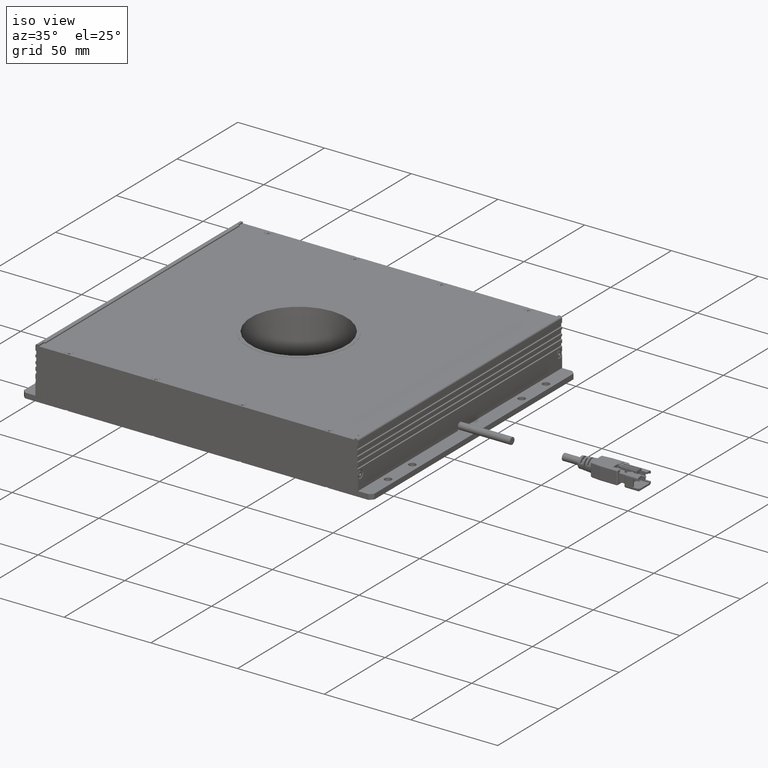
[diagram: clean part render]
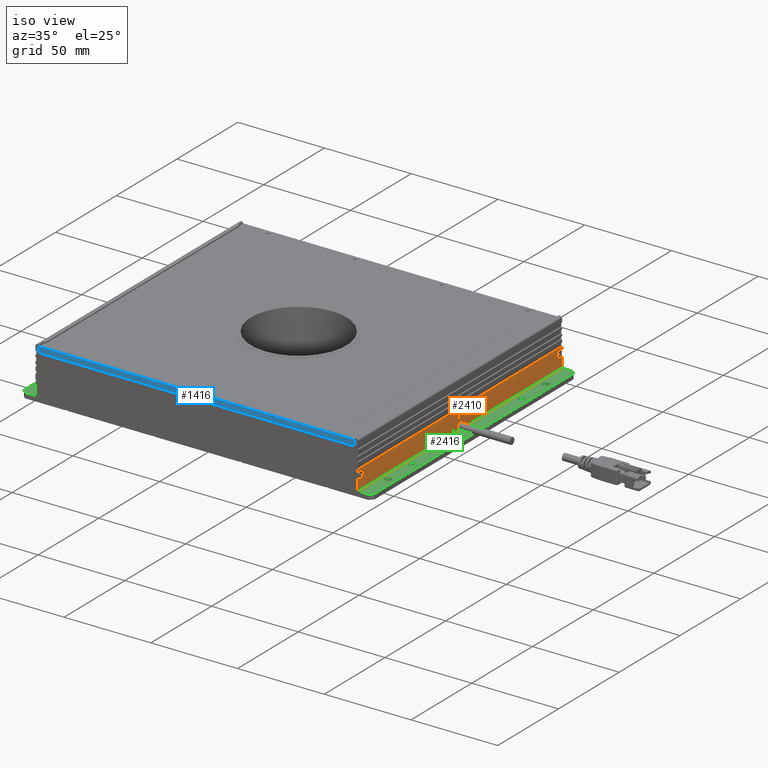
[diagram: same view with three faces highlighted in distinct colors, each labeled with its STEP entity id]
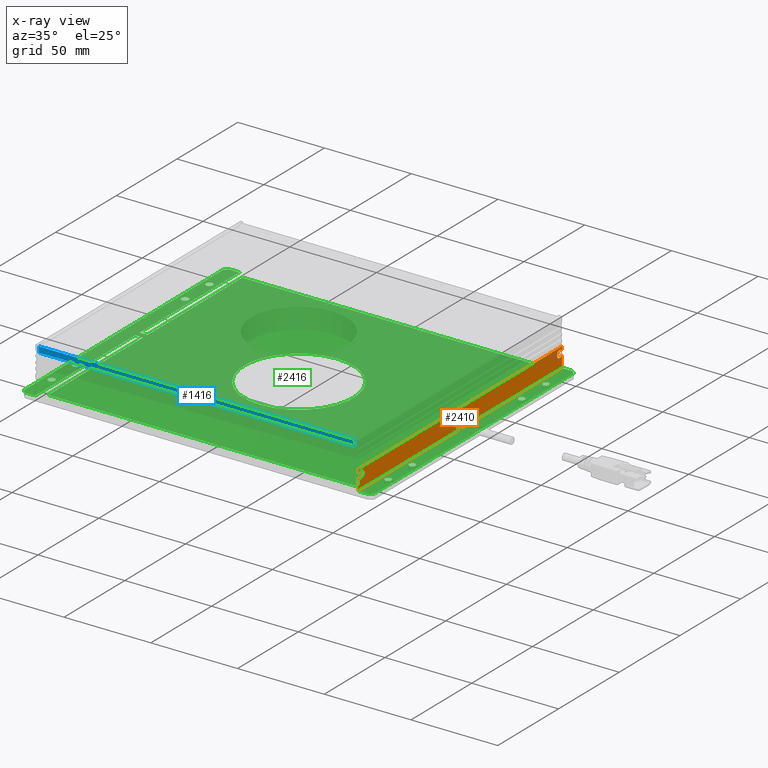
[diagram: x-ray of the same camera — body ghosted, the three highlighted faces saturated]
A machine part, iso view with three faces highlighted in distinct colors.
The next image is the same camera in x-ray (body ghosted, the three faces saturated) — at least one of them is partly hidden behind the body in this view.
Their STEP definitions:

[orange] entity #2410 — the highlighted planar face has unit normal (1, 0, 0).
#2410=ADVANCED_FACE('NONE',(#5809),#5810,.T.);
#5809=FACE_OUTER_BOUND('',#10111,.T.);
#5810=PLANE('',#10112);
#10111=EDGE_LOOP('',(#18374,#18375,#18376,#18377,#18378,#18379,#18380,#18381,#18382,#18383,#18384,#18385,#18386,#18387));
#10112=AXIS2_PLACEMENT_3D('',#18388,#18389,#18390);
#18374=ORIENTED_EDGE('',*,*,#22379,.T.);
#18375=ORIENTED_EDGE('',*,*,#22489,.T.);
#18376=ORIENTED_EDGE('',*,*,#22386,.T.);
#18377=ORIENTED_EDGE('',*,*,#23950,.F.);
#18378=ORIENTED_EDGE('',*,*,#23951,.F.);
#18379=ORIENTED_EDGE('',*,*,#22196,.F.);
#18380=ORIENTED_EDGE('',*,*,#22166,.T.);
#18381=ORIENTED_EDGE('',*,*,#22195,.F.);
#18382=ORIENTED_EDGE('',*,*,#23714,.T.);
#18383=ORIENTED_EDGE('',*,*,#23952,.F.);
#18384=ORIENTED_EDGE('',*,*,#23692,.T.);
#18385=ORIENTED_EDGE('',*,*,#23953,.F.);
#18386=ORIENTED_EDGE('',*,*,#23954,.T.);
#18387=ORIENTED_EDGE('',*,*,#23955,.F.);
#18388=CARTESIAN_POINT('',(0.093,0.098625,-0.0116249999999997));
#18389=DIRECTION('',(1.0,0.0,0.0));
#18390=DIRECTION('',(0.0,-3.49148336110938E-15,1.0));
#22166=EDGE_CURVE('NONE',#24708,#24707,#24710,.T.);
#22195=EDGE_CURVE('NONE',#24763,#24707,#24765,.T.);
#22196=EDGE_CURVE('NONE',#24708,#24715,#24766,.T.);
#22379=EDGE_CURVE('NONE',#25082,#25079,#25083,.T.);
#22386=EDGE_CURVE('5:3145',#25089,#25093,#25095,.T.);
#22489=EDGE_CURVE('5:2401',#25079,#25089,#25265,.F.);
#23692=EDGE_CURVE('NONE',#27054,#27055,#27056,.T.);
#23714=EDGE_CURVE('NONE',#24763,#27081,#27083,.T.);
#23950=EDGE_CURVE('NONE',#24920,#25093,#27388,.T.);
#23951=EDGE_CURVE('5:2434',#24715,#24920,#27389,.F.);
#23952=EDGE_CURVE('NONE',#27054,#27081,#27390,.T.);
#23953=EDGE_CURVE('NONE',#27391,#27055,#27392,.T.);
#23954=EDGE_CURVE('5:2404',#27391,#27286,#27393,.F.);
#23955=EDGE_CURVE('NONE',#25082,#27286,#27394,.T.);
#24707=VERTEX_POINT('NONE',#28411);
#24708=VERTEX_POINT('NONE',#28412);
#24710=CIRCLE('',#28423,0.00224999999774678);
#24715=VERTEX_POINT('NONE',#28428);
#24763=VERTEX_POINT('NONE',#28486);
#24765=LINE('',#28488,#28489);
#24766=LINE('',#28490,#28491);
#24920=VERTEX_POINT('',#28710);
#25079=VERTEX_POINT('',#28969);
#25082=VERTEX_POINT('NONE',#28973);
#25083=LINE('',#28974,#28975);
#25089=VERTEX_POINT('',#28983);
#25093=VERTEX_POINT('NONE',#28989);
#25095=LINE('',#28992,#28993);
#25265=CIRCLE('',#29224,0.00195);
#27054=VERTEX_POINT('NONE',#31756);
#27055=VERTEX_POINT('NONE',#31757);
#27056=CIRCLE('',#31758,0.00224999999774716);
#27081=VERTEX_POINT('NONE',#31800);
#27083=LINE('',#31802,#31803);
#27286=VERTEX_POINT('',#32120);
#27388=LINE('',#32245,#32246);
#27389=LINE('',#32247,#32248);
#27390=LINE('',#32249,#32250);
#27391=VERTEX_POINT('NONE',#32251);
#27392=LINE('',#32252,#32253);
#27393=LINE('',#32254,#32255);
#27394=LINE('',#32256,#32257);
#28411=CARTESIAN_POINT('',(0.093,0.098635,-0.00261386203223245));
#28412=CARTESIAN_POINT('',(0.093,0.098635,-0.00463613796776696));
#28423=AXIS2_PLACEMENT_3D('',#33224,#33225,#33226);
#28428=CARTESIAN_POINT('',(0.093,0.098635,-0.0116249999999997));
#28486=CARTESIAN_POINT('',(0.093,0.098635,-0.00037499999999991));
#28488=CARTESIAN_POINT('',(0.093,0.0986350000000001,-0.0146249999999997));
#28489=VECTOR('',#33288,1.0);
#28490=CARTESIAN_POINT('',(0.093,0.0986350000000001,-0.0146249999999997));
#28491=VECTOR('',#33289,1.0);
#28710=CARTESIAN_POINT('',(0.093,0.098625,-0.0116249999999997));
#28969=CARTESIAN_POINT('',(0.093,0.0128750000000001,-0.0104352325267043));
#28973=CARTESIAN_POINT('',(0.093,0.0128750000000001,-0.011625));
#28974=CARTESIAN_POINT('',(0.093,0.0128750000000001,-0.011625));
#28975=VECTOR('',#33516,1.0);
#28983=CARTESIAN_POINT('',(0.093,0.0163750000000001,-0.0104352325267043));
#28989=CARTESIAN_POINT('',(0.093,0.0163750000000001,-0.011625));
#28992=CARTESIAN_POINT('',(0.093,0.0163750000000001,-0.011625));
#28993=VECTOR('',#33522,1.0);
#29224=AXIS2_PLACEMENT_3D('',#33668,#33669,#33670);
#31756=CARTESIAN_POINT('',(0.093,-0.069385,-0.00261386203223216));
#31757=CARTESIAN_POINT('',(0.093,-0.069385,-0.00463613796776842));
#31758=AXIS2_PLACEMENT_3D('',#34738,#34739,#34740);
#31800=CARTESIAN_POINT('',(0.093,-0.069385,-0.000375000000000497));
#31802=CARTESIAN_POINT('',(0.093,0.098625,-0.00037499999999991));
#31803=VECTOR('',#34761,1.0);
#32120=CARTESIAN_POINT('',(0.093,-0.069375,-0.0116250000000003));
#32245=CARTESIAN_POINT('',(0.093,0.014625,-0.011625));
#32246=VECTOR('',#35005,1.0);
#32247=CARTESIAN_POINT('',(0.093,0.098625,-0.0116249999999997));
#32248=VECTOR('',#35006,1.0);
#32249=CARTESIAN_POINT('',(0.093,-0.0693849999999999,-0.0146250000000003));
#32250=VECTOR('',#35007,1.0);
#32251=CARTESIAN_POINT('',(0.093,-0.069385,-0.0116250000000003));
#32252=CARTESIAN_POINT('',(0.093,-0.0693849999999999,-0.0146250000000003));
#32253=VECTOR('',#35008,1.0);
#32254=CARTESIAN_POINT('',(0.093,-0.069375,-0.0116250000000003));
#32255=VECTOR('',#35009,1.0);
#32256=CARTESIAN_POINT('',(0.093,0.014625,-0.011625));
#32257=VECTOR('',#35010,1.0);
#33224=CARTESIAN_POINT('',(0.093,0.096625,-0.00362499999999971));
#33225=DIRECTION('',(-1.0,0.0,0.0));
#33226=DIRECTION('',(0.0,1.0,4.26247157342672E-15));
#33288=DIRECTION('',(0.0,3.49148336110938E-15,-1.0));
#33289=DIRECTION('',(0.0,3.49148336110938E-15,-1.0));
#33516=DIRECTION('',(0.0,-3.49148336110938E-15,1.0));
#33522=DIRECTION('',(0.0,3.49148336110938E-15,-1.0));
#33668=CARTESIAN_POINT('',(0.093,0.014625,-0.009575));
#33669=DIRECTION('',(1.0,0.0,0.0));
#33670=DIRECTION('',(0.0,0.0,-1.0));
#34738=CARTESIAN_POINT('',(0.093,-0.067375,-0.00362500000000029));
#34739=DIRECTION('',(-1.0,0.0,0.0));
#34740=DIRECTION('',(0.0,1.0,3.49148336110938E-15));
#34761=DIRECTION('',(0.0,-1.0,-3.49148336110938E-15));
#35005=DIRECTION('',(0.0,-1.0,-3.49148336110938E-15));
#35006=DIRECTION('',(-0.0,1.0,3.49148336110938E-15));
#35007=DIRECTION('',(0.0,-3.49148336110938E-15,1.0));
#35008=DIRECTION('',(0.0,-3.49148336110938E-15,1.0));
#35009=DIRECTION('',(0.0,-1.0,-3.49148336110938E-15));
#35010=DIRECTION('',(0.0,-1.0,-3.49148336110938E-15));

[blue] entity #1416 — the highlighted planar face has unit normal (0, -1, -0).
#1416=ADVANCED_FACE('NONE',(#4200),#4201,.T.);
#4200=FACE_OUTER_BOUND('',#8502,.T.);
#4201=PLANE('',#8503);
#8502=EDGE_LOOP('',(#13917,#13918,#13919,#13920,#13921,#13922,#13923,#13924,#13925,#13926,#13927,#13928));
#8503=AXIS2_PLACEMENT_3D('',#13929,#13930,#13931);
#13917=ORIENTED_EDGE('',*,*,#22134,.F.);
#13918=ORIENTED_EDGE('',*,*,#22135,.F.);
#13919=ORIENTED_EDGE('',*,*,#22136,.F.);
#13920=ORIENTED_EDGE('',*,*,#22137,.F.);
#13921=ORIENTED_EDGE('',*,*,#22138,.T.);
#13922=ORIENTED_EDGE('',*,*,#22139,.F.);
#13923=ORIENTED_EDGE('',*,*,#22140,.T.);
#13924=ORIENTED_EDGE('',*,*,#22141,.F.);
#13925=ORIENTED_EDGE('',*,*,#22142,.T.);
#13926=ORIENTED_EDGE('',*,*,#22143,.F.);
#13927=ORIENTED_EDGE('',*,*,#22144,.T.);
#13928=ORIENTED_EDGE('',*,*,#22145,.F.);
#13929=CARTESIAN_POINT('',(-0.101,-0.069375,-0.0146250000000003));
#13930=DIRECTION('',(0.0,-1.0,-3.49148336110938E-15));
#13931=DIRECTION('',(1.0,0.0,0.0));
#22134=EDGE_CURVE('5:2470',#24651,#24652,#24653,.T.);
#22135=EDGE_CURVE('5:2473',#24654,#24651,#24655,.T.);
#22136=EDGE_CURVE('5:2467',#24656,#24654,#24657,.T.);
#22137=EDGE_CURVE('NONE',#24658,#24656,#24659,.T.);
#22138=EDGE_CURVE('NONE',#24658,#24660,#24661,.T.);
#22139=EDGE_CURVE('NONE',#24662,#24660,#24663,.T.);
#22140=EDGE_CURVE('NONE',#24662,#24664,#24665,.T.);
#22141=EDGE_CURVE('NONE',#24666,#24664,#24667,.T.);
#22142=EDGE_CURVE('NONE',#24666,#24668,#24669,.T.);
#22143=EDGE_CURVE('NONE',#24670,#24668,#24671,.T.);
#22144=EDGE_CURVE('NONE',#24670,#24672,#24673,.T.);
#22145=EDGE_CURVE('NONE',#24652,#24672,#24674,.T.);
#24651=VERTEX_POINT('',#28317);
#24652=VERTEX_POINT('',#28318);
#24653=LINE('',#28319,#28320);
#24654=VERTEX_POINT('',#28321);
#24655=LINE('',#28322,#28323);
#24656=VERTEX_POINT('NONE',#28324);
#24657=LINE('',#28325,#28326);
#24658=VERTEX_POINT('NONE',#28327);
#24659=LINE('',#28328,#28329);
#24660=VERTEX_POINT('NONE',#28330);
#24661=B_SPLINE_CURVE_WITH_KNOTS('',3,(#28331,#28332,#28333,#28334,#28335,#28336),.UNSPECIFIED.,.F.,.F.,(4,2,4),(0.00167439948854213,0.00231428631161914,0.00295417313469614),.UNSPECIFIED.);
#24662=VERTEX_POINT('NONE',#28337);
#24663=LINE('',#28338,#28339);
#24664=VERTEX_POINT('NONE',#28340);
#24665=B_SPLINE_CURVE_WITH_KNOTS('',3,(#28341,#28342,#28343,#28344,#28345,#28346),.UNSPECIFIED.,.F.,.F.,(4,2,4),(0.00167439948857135,0.0023142863118423,0.00295417313511325),.UNSPECIFIED.);
#24666=VERTEX_POINT('NONE',#28347);
#24667=LINE('',#28348,#28349);
#24668=VERTEX_POINT('NONE',#28350);
#24669=B_SPLINE_CURVE_WITH_KNOTS('',3,(#28351,#28352,#28353,#28354,#28355,#28356),.UNSPECIFIED.,.F.,.F.,(4,2,4),(0.00167439939593847,0.00231428631189733,0.0029541732278562),.UNSPECIFIED.);
#24670=VERTEX_POINT('NONE',#28357);
#24671=LINE('',#28358,#28359);
#24672=VERTEX_POINT('NONE',#28360);
#24673=B_SPLINE_CURVE_WITH_KNOTS('',3,(#28361,#28362,#28363,#28364,#28365,#28366),.UNSPECIFIED.,.F.,.F.,(4,2,4),(0.00167439939593847,0.00231428631189734,0.00295417322785621),.UNSPECIFIED.);
#24674=LINE('',#28367,#28368);
#28317=CARTESIAN_POINT('',(-0.091,-0.069375,0.0112750000000003));
#28318=CARTESIAN_POINT('',(-0.091,-0.069375,0.0145749999999997));
#28319=CARTESIAN_POINT('',(-0.091,-0.069375,0.00137499999999971));
#28320=VECTOR('',#33194,1.0);
#28321=CARTESIAN_POINT('',(0.091,-0.069375,0.0112750000000003));
#28322=CARTESIAN_POINT('',(0.091,-0.069375,0.0112750000000003));
#28323=VECTOR('',#33195,1.0);
#28324=CARTESIAN_POINT('',(0.091,-0.069375,0.0145749999999997));
#28325=CARTESIAN_POINT('',(0.091,-0.069375,0.00137499999999971));
#28326=VECTOR('',#33196,1.0);
#28327=CARTESIAN_POINT('',(0.0756403123268037,-0.069375,0.0145749999724905));
#28328=CARTESIAN_POINT('',(0.0,-0.069375,0.0145749999999997));
#28329=VECTOR('',#33197,1.0);
#28330=CARTESIAN_POINT('',(0.0743596876731963,-0.069375,0.0145749999724905));
#28331=CARTESIAN_POINT('',(0.0756403123268038,-0.069375,0.0145749999724905));
#28332=CARTESIAN_POINT('',(0.0754321082378769,-0.069375,0.014511516331181));
#28333=CARTESIAN_POINT('',(0.0752174719426165,-0.0693750000000001,0.0144748583437539));
#28334=CARTESIAN_POINT('',(0.0747799302719438,-0.069375,0.0144751425035398));
#28335=CARTESIAN_POINT('',(0.0745674760715241,-0.069375,0.0145116430796662));
#28336=CARTESIAN_POINT('',(0.0743596876731963,-0.069375,0.0145749999724905));
#28337=CARTESIAN_POINT('',(0.0256403123269891,-0.069375,0.0145749999724336));
#28338=CARTESIAN_POINT('',(0.0,-0.069375,0.0145749999999997));
#28339=VECTOR('',#33198,1.0);
#28340=CARTESIAN_POINT('',(0.0243596876730109,-0.069375,0.0145749999724336));
#28341=CARTESIAN_POINT('',(0.0256403123269891,-0.069375,0.0145749999724336));
#28342=CARTESIAN_POINT('',(0.0254321082380045,-0.069375,0.0145115163310938));
#28343=CARTESIAN_POINT('',(0.0252174719426823,-0.0693750000000001,0.0144748583436469));
#28344=CARTESIAN_POINT('',(0.0247799302718797,-0.069375,0.0144751425034327));
#28345=CARTESIAN_POINT('',(0.0245674760713984,-0.069375,0.0145116430795785));
#28346=CARTESIAN_POINT('',(0.0243596876730109,-0.069375,0.0145749999724336));
#28347=CARTESIAN_POINT('',(-0.0243596875826253,-0.069375,0.0145750000000596));
#28348=CARTESIAN_POINT('',(0.0,-0.069375,0.0145749999999997));
#28349=VECTOR('',#33199,1.0);
#28350=CARTESIAN_POINT('',(-0.0256403124173747,-0.069375,0.0145750000000596));
#28351=CARTESIAN_POINT('',(-0.0243596875826253,-0.069375,0.0145750000000595));
#28352=CARTESIAN_POINT('',(-0.024567891697987,-0.069375,0.0145115163425483));
#28353=CARTESIAN_POINT('',(-0.0247825280257254,-0.0693750000000001,0.0144748583436813));
#28354=CARTESIAN_POINT('',(-0.0252200697599029,-0.069375,0.014475142503529));
#28355=CARTESIAN_POINT('',(-0.0254325239902273,-0.069375,0.0145116430903226));
#28356=CARTESIAN_POINT('',(-0.0256403124173747,-0.069375,0.0145750000000596));
#28357=CARTESIAN_POINT('',(-0.0743596875826253,-0.069375,0.0145750000000596));
#28358=CARTESIAN_POINT('',(0.0,-0.069375,0.0145749999999997));
#28359=VECTOR('',#33200,1.0);
#28360=CARTESIAN_POINT('',(-0.0756403124173747,-0.069375,0.0145750000000596));
#28361=CARTESIAN_POINT('',(-0.0743596875826253,-0.069375,0.0145750000000595));
#28362=CARTESIAN_POINT('',(-0.074567891697987,-0.069375,0.0145115163425483));
#28363=CARTESIAN_POINT('',(-0.0747825280257254,-0.0693750000000001,0.0144748583436813));
#28364=CARTESIAN_POINT('',(-0.0752200697599029,-0.069375,0.014475142503529));
#28365=CARTESIAN_POINT('',(-0.0754325239902273,-0.069375,0.0145116430903226));
#28366=CARTESIAN_POINT('',(-0.0756403124173747,-0.069375,0.0145750000000596));
#28367=CARTESIAN_POINT('',(0.0,-0.069375,0.0145749999999997));
#28368=VECTOR('',#33201,1.0);
#33194=DIRECTION('',(0.0,-3.49148336110938E-15,1.0));
#33195=DIRECTION('',(-1.0,9.29541552163224E-46,-2.66231127582367E-31));
#33196=DIRECTION('',(0.0,3.49148336110938E-15,-1.0));
#33197=DIRECTION('',(1.0,0.0,0.0));
#33198=DIRECTION('',(1.0,0.0,0.0));
#33199=DIRECTION('',(1.0,0.0,0.0));
#33200=DIRECTION('',(1.0,0.0,0.0));
#33201=DIRECTION('',(1.0,0.0,0.0));

[green] entity #2416 — the highlighted planar face has unit normal (0, -0, 1).
#2416=ADVANCED_FACE('NONE',(#5818,#5819,#5820,#5821,#5822,#5823,#5824,#5825,#5826,#5827),#5828,.T.);
#5818=FACE_BOUND('',#10120,.T.);
#5819=FACE_BOUND('',#10121,.T.);
#5820=FACE_BOUND('',#10122,.T.);
#5821=FACE_BOUND('',#10123,.T.);
#5822=FACE_BOUND('',#10124,.T.);
#5823=FACE_BOUND('',#10125,.T.);
#5824=FACE_BOUND('',#10126,.T.);
#5825=FACE_BOUND('',#10127,.T.);
#5826=FACE_BOUND('',#10128,.T.);
#5827=FACE_OUTER_BOUND('',#10129,.T.);
#5828=PLANE('',#10130);
#10120=EDGE_LOOP('',(#18408));
#10121=EDGE_LOOP('',(#18409));
#10122=EDGE_LOOP('',(#18410));
#10123=EDGE_LOOP('',(#18411));
#10124=EDGE_LOOP('',(#18412));
#10125=EDGE_LOOP('',(#18413));
#10126=EDGE_LOOP('',(#18414));
#10127=EDGE_LOOP('',(#18415));
#10128=EDGE_LOOP('',(#18416));
#10129=EDGE_LOOP('',(#18417,#18418,#18419,#18420,#18421,#18422,#18423,#18424,#18425,#18426,#18427,#18428,#18429,#18430,#18431,#18432,#18433,#18434,#18435,#18436,#18437,#18438,#18439,#18440));
#10130=AXIS2_PLACEMENT_3D('',#18441,#18442,#18443);
#18408=ORIENTED_EDGE('',*,*,#23899,.T.);
#18409=ORIENTED_EDGE('',*,*,#22447,.T.);
#18410=ORIENTED_EDGE('',*,*,#22415,.T.);
#18411=ORIENTED_EDGE('',*,*,#23920,.T.);
#18412=ORIENTED_EDGE('',*,*,#22246,.T.);
#18413=ORIENTED_EDGE('',*,*,#23901,.T.);
#18414=ORIENTED_EDGE('',*,*,#23945,.T.);
#18415=ORIENTED_EDGE('',*,*,#23928,.F.);
#18416=ORIENTED_EDGE('',*,*,#23758,.F.);
#18417=ORIENTED_EDGE('',*,*,#23842,.F.);
#18418=ORIENTED_EDGE('',*,*,#22315,.F.);
#18419=ORIENTED_EDGE('',*,*,#23908,.F.);
#18420=ORIENTED_EDGE('',*,*,#23854,.F.);
#18421=ORIENTED_EDGE('',*,*,#23728,.T.);
#18422=ORIENTED_EDGE('',*,*,#23836,.T.);
#18423=ORIENTED_EDGE('',*,*,#23823,.T.);
#18424=ORIENTED_EDGE('',*,*,#22412,.T.);
#18425=ORIENTED_EDGE('',*,*,#23910,.T.);
#18426=ORIENTED_EDGE('',*,*,#22380,.T.);
#18427=ORIENTED_EDGE('',*,*,#23955,.T.);
#18428=ORIENTED_EDGE('',*,*,#23859,.F.);
#18429=ORIENTED_EDGE('',*,*,#23913,.F.);
#18430=ORIENTED_EDGE('',*,*,#22272,.F.);
#18431=ORIENTED_EDGE('',*,*,#23960,.F.);
#18432=ORIENTED_EDGE('',*,*,#22283,.F.);
#18433=ORIENTED_EDGE('',*,*,#23950,.T.);
#18434=ORIENTED_EDGE('',*,*,#22385,.T.);
#18435=ORIENTED_EDGE('',*,*,#23911,.T.);
#18436=ORIENTED_EDGE('',*,*,#23795,.T.);
#18437=ORIENTED_EDGE('',*,*,#23825,.T.);
#18438=ORIENTED_EDGE('',*,*,#23820,.T.);
#18439=ORIENTED_EDGE('',*,*,#23729,.T.);
#18440=ORIENTED_EDGE('',*,*,#22279,.F.);
#18441=CARTESIAN_POINT('',(0.0,0.014625,-0.011625));
#18442=DIRECTION('',(0.0,-3.49148336110938E-15,1.0));
#18443=DIRECTION('',(1.0,0.0,0.0));
#22246=EDGE_CURVE('NONE',#24855,#24855,#24856,.T.);
#22272=EDGE_CURVE('NONE',#24901,#24903,#24904,.T.);
#22279=EDGE_CURVE('NONE',#24914,#24915,#24916,.T.);
#22283=EDGE_CURVE('NONE',#24920,#24922,#24923,.T.);
#22315=EDGE_CURVE('NONE',#24973,#24975,#24976,.T.);
#22380=EDGE_CURVE('NONE',#25084,#25082,#25085,.T.);
#22385=EDGE_CURVE('NONE',#25093,#25091,#25094,.T.);
#22412=EDGE_CURVE('NONE',#25101,#25140,#25142,.T.);
#22415=EDGE_CURVE('NONE',#25146,#25146,#25147,.T.);
#22447=EDGE_CURVE('NONE',#25195,#25195,#25196,.T.);
#23728=EDGE_CURVE('NONE',#24768,#27102,#27104,.T.);
#23729=EDGE_CURVE('NONE',#27105,#24915,#27106,.T.);
#23758=EDGE_CURVE('NONE',#27144,#27144,#27145,.T.);
#23795=EDGE_CURVE('NONE',#27208,#27206,#27209,.T.);
#23820=EDGE_CURVE('NONE',#27242,#27105,#27243,.T.);
#23823=EDGE_CURVE('NONE',#27246,#25101,#27247,.T.);
#23825=EDGE_CURVE('NONE',#27206,#27242,#27249,.T.);
#23836=EDGE_CURVE('NONE',#27102,#27246,#27260,.T.);
#23842=EDGE_CURVE('NONE',#24975,#24914,#27266,.T.);
#23854=EDGE_CURVE('NONE',#24768,#27279,#27280,.T.);
#23859=EDGE_CURVE('NONE',#27284,#27286,#27287,.T.);
#23899=EDGE_CURVE('NONE',#27328,#27328,#27329,.T.);
#23901=EDGE_CURVE('NONE',#27331,#27331,#27332,.T.);
#23908=EDGE_CURVE('NONE',#27279,#24973,#27341,.T.);
#23910=EDGE_CURVE('NONE',#25140,#25084,#27343,.T.);
#23911=EDGE_CURVE('NONE',#25091,#27208,#27344,.T.);
#23913=EDGE_CURVE('NONE',#24903,#27284,#27346,.T.);
#23920=EDGE_CURVE('NONE',#27353,#27353,#27354,.T.);
#23928=EDGE_CURVE('NONE',#27363,#27363,#27364,.T.);
#23945=EDGE_CURVE('NONE',#27382,#27382,#27383,.T.);
#23950=EDGE_CURVE('NONE',#24920,#25093,#27388,.T.);
#23955=EDGE_CURVE('NONE',#25082,#27286,#27394,.T.);
#23960=EDGE_CURVE('NONE',#24922,#24901,#27399,.T.);
#24768=VERTEX_POINT('',#28493);
#24855=VERTEX_POINT('',#28611);
#24856=CIRCLE('',#28612,0.002);
#24901=VERTEX_POINT('NONE',#28678);
#24903=VERTEX_POINT('NONE',#28681);
#24904=LINE('',#28682,#28683);
#24914=VERTEX_POINT('NONE',#28701);
#24915=VERTEX_POINT('',#28702);
#24916=LINE('',#28703,#28704);
#24920=VERTEX_POINT('',#28710);
#24922=VERTEX_POINT('NONE',#28713);
#24923=LINE('',#28714,#28715);
#24973=VERTEX_POINT('NONE',#28799);
#24975=VERTEX_POINT('NONE',#28802);
#24976=LINE('',#28803,#28804);
#25082=VERTEX_POINT('NONE',#28973);
#25084=VERTEX_POINT('NONE',#28976);
#25085=LINE('',#28977,#28978);
#25091=VERTEX_POINT('NONE',#28986);
#25093=VERTEX_POINT('NONE',#28989);
#25094=LINE('',#28990,#28991);
#25101=VERTEX_POINT('NONE',#29000);
#25140=VERTEX_POINT('NONE',#29059);
#25142=LINE('',#29062,#29063);
#25146=VERTEX_POINT('',#29067);
#25147=CIRCLE('',#29068,0.002);
#25195=VERTEX_POINT('',#29133);
#25196=CIRCLE('',#29134,0.002);
#27102=VERTEX_POINT('NONE',#31827);
#27104=LINE('',#31830,#31831);
#27105=VERTEX_POINT('NONE',#31832);
#27106=LINE('',#31833,#31834);
#27144=VERTEX_POINT('',#31897);
#27145=CIRCLE('',#31898,0.002);
#27206=VERTEX_POINT('NONE',#31972);
#27208=VERTEX_POINT('NONE',#31975);
#27209=LINE('',#31976,#31977);
#27242=VERTEX_POINT('NONE',#32033);
#27243=LINE('',#32034,#32035);
#27246=VERTEX_POINT('NONE',#32039);
#27247=LINE('',#32040,#32041);
#27249=LINE('',#32044,#32045);
#27260=LINE('',#32060,#32061);
#27266=LINE('',#32069,#32070);
#27279=VERTEX_POINT('NONE',#32100);
#27280=LINE('',#32101,#32102);
#27284=VERTEX_POINT('NONE',#32117);
#27286=VERTEX_POINT('',#32120);
#27287=LINE('',#32121,#32122);
#27328=VERTEX_POINT('',#32173);
#27329=CIRCLE('',#32174,0.002);
#27331=VERTEX_POINT('',#32176);
#27332=CIRCLE('',#32177,0.002);
#27341=LINE('',#32187,#32188);
#27343=LINE('',#32190,#32191);
#27344=LINE('',#32192,#32193);
#27346=LINE('',#32195,#32196);
#27353=VERTEX_POINT('',#32203);
#27354=CIRCLE('',#32204,0.002);
#27363=VERTEX_POINT('',#32216);
#27364=CIRCLE('',#32217,0.002);
#27382=VERTEX_POINT('',#32238);
#27383=CIRCLE('',#32239,0.0315);
#27388=LINE('',#32245,#32246);
#27394=LINE('',#32256,#32257);
#27399=LINE('',#32263,#32264);
#28493=CARTESIAN_POINT('',(-0.093,-0.069375,-0.0116250000000003));
#28611=CARTESIAN_POINT('',(-0.097,0.081625,-0.0116249999999998));
#28612=AXIS2_PLACEMENT_3D('',#33372,#33373,#33374);
#28678=CARTESIAN_POINT('',(0.101,0.096625,-0.0116249999999997));
#28681=CARTESIAN_POINT('',(0.101,-0.067375,-0.0116250000000003));
#28682=CARTESIAN_POINT('',(0.101,-0.069375,-0.0116250000000003));
#28683=VECTOR('',#33397,1.0);
#28701=CARTESIAN_POINT('',(-0.099,0.098625,-0.0116249999999997));
#28702=CARTESIAN_POINT('',(-0.093,0.098625,-0.0116249999999997));
#28703=CARTESIAN_POINT('',(0.101,0.098625,-0.0116249999999997));
#28704=VECTOR('',#33405,1.0);
#28710=CARTESIAN_POINT('',(0.093,0.098625,-0.0116249999999997));
#28713=CARTESIAN_POINT('',(0.099,0.098625,-0.0116249999999997));
#28714=CARTESIAN_POINT('',(0.101,0.098625,-0.0116249999999997));
#28715=VECTOR('',#33409,1.0);
#28799=CARTESIAN_POINT('',(-0.101,-0.067375,-0.0116250000000003));
#28802=CARTESIAN_POINT('',(-0.101,0.096625,-0.0116249999999997));
#28803=CARTESIAN_POINT('',(-0.101,0.098625,-0.0116249999999997));
#28804=VECTOR('',#33444,1.0);
#28973=CARTESIAN_POINT('',(0.093,0.0128750000000001,-0.011625));
#28976=CARTESIAN_POINT('',(0.0885,0.0128750000000001,-0.011625));
#28977=CARTESIAN_POINT('',(0.0,0.0128750000000001,-0.011625));
#28978=VECTOR('',#33517,1.0);
#28986=CARTESIAN_POINT('',(0.0885,0.0163750000000001,-0.011625));
#28989=CARTESIAN_POINT('',(0.093,0.0163750000000001,-0.011625));
#28990=CARTESIAN_POINT('',(0.0,0.0163750000000001,-0.011625));
#28991=VECTOR('',#33521,1.0);
#29000=CARTESIAN_POINT('',(-0.0885,-0.065375,-0.0116250000000003));
#29059=CARTESIAN_POINT('',(0.0885,-0.065375,-0.0116250000000003));
#29062=CARTESIAN_POINT('',(0.0,-0.065375,-0.0116250000000003));
#29063=VECTOR('',#33548,1.0);
#29067=CARTESIAN_POINT('',(0.097,-0.048375,-0.0116250000000002));
#29068=AXIS2_PLACEMENT_3D('',#33552,#33553,#33554);
#29133=CARTESIAN_POINT('',(0.097,-0.032375,-0.0116250000000002));
#29134=AXIS2_PLACEMENT_3D('',#33587,#33588,#33589);
#31827=CARTESIAN_POINT('',(-0.093,0.012875,-0.011625));
#31830=CARTESIAN_POINT('',(-0.093,0.014625,-0.011625));
#31831=VECTOR('',#34777,1.0);
#31832=CARTESIAN_POINT('',(-0.093,0.016375,-0.011625));
#31833=CARTESIAN_POINT('',(-0.093,0.014625,-0.011625));
#31834=VECTOR('',#34778,1.0);
#31897=CARTESIAN_POINT('',(-0.097,-0.032375,-0.0116250000000002));
#31898=AXIS2_PLACEMENT_3D('',#34801,#34802,#34803);
#31972=CARTESIAN_POINT('',(-0.0885,0.094625,-0.0116249999999997));
#31975=CARTESIAN_POINT('',(0.0885,0.094625,-0.0116249999999997));
#31976=CARTESIAN_POINT('',(0.0,0.094625,-0.0116249999999997));
#31977=VECTOR('',#34878,1.0);
#32033=CARTESIAN_POINT('',(-0.0885,0.016375,-0.011625));
#32034=CARTESIAN_POINT('',(0.0,0.016375,-0.011625));
#32035=VECTOR('',#34897,1.0);
#32039=CARTESIAN_POINT('',(-0.0885,0.012875,-0.011625));
#32040=CARTESIAN_POINT('',(-0.0885,0.014625,-0.011625));
#32041=VECTOR('',#34899,1.0);
#32044=CARTESIAN_POINT('',(-0.0885,0.014625,-0.011625));
#32045=VECTOR('',#34901,1.0);
#32060=CARTESIAN_POINT('',(0.0,0.012875,-0.011625));
#32061=VECTOR('',#34909,1.0);
#32069=CARTESIAN_POINT('',(-0.1,0.097625,-0.0116249999999997));
#32070=VECTOR('',#34912,1.0);
#32100=CARTESIAN_POINT('',(-0.099,-0.069375,-0.0116250000000003));
#32101=CARTESIAN_POINT('',(-0.101,-0.069375,-0.0116250000000003));
#32102=VECTOR('',#34919,1.0);
#32117=CARTESIAN_POINT('',(0.099,-0.069375,-0.0116250000000003));
#32120=CARTESIAN_POINT('',(0.093,-0.069375,-0.0116250000000003));
#32121=CARTESIAN_POINT('',(-0.101,-0.069375,-0.0116250000000003));
#32122=VECTOR('',#34922,1.0);
#32173=CARTESIAN_POINT('',(0.097,0.057625,-0.0116249999999998));
#32174=AXIS2_PLACEMENT_3D('',#34951,#34952,#34953);
#32176=CARTESIAN_POINT('',(-0.097,-0.052375,-0.0116250000000002));
#32177=AXIS2_PLACEMENT_3D('',#34954,#34955,#34956);
#32187=CARTESIAN_POINT('',(-0.1,-0.068375,-0.0116250000000003));
#32188=VECTOR('',#34964,1.0);
#32190=CARTESIAN_POINT('',(0.0885,0.014625,-0.011625));
#32191=VECTOR('',#34965,1.0);
#32192=CARTESIAN_POINT('',(0.0885,0.014625,-0.011625));
#32193=VECTOR('',#34966,1.0);
#32195=CARTESIAN_POINT('',(0.1,-0.068375,-0.0116250000000003));
#32196=VECTOR('',#34967,1.0);
#32203=CARTESIAN_POINT('',(0.097,0.077625,-0.0116249999999998));
#32204=AXIS2_PLACEMENT_3D('',#34977,#34978,#34979);
#32216=CARTESIAN_POINT('',(-0.097,0.057625,-0.0116249999999998));
#32217=AXIS2_PLACEMENT_3D('',#34986,#34987,#34988);
#32238=CARTESIAN_POINT('',(0.0,-0.016875,-0.0116250000000001));
#32239=AXIS2_PLACEMENT_3D('',#35001,#35002,#35003);
#32245=CARTESIAN_POINT('',(0.093,0.014625,-0.011625));
#32246=VECTOR('',#35005,1.0);
#32256=CARTESIAN_POINT('',(0.093,0.014625,-0.011625));
#32257=VECTOR('',#35010,1.0);
#32263=CARTESIAN_POINT('',(0.1,0.097625,-0.0116249999999997));
#32264=VECTOR('',#35012,1.0);
#33372=CARTESIAN_POINT('',(-0.097,0.079625,-0.0116249999999998));
#33373=DIRECTION('',(0.0,3.49148336110938E-15,-1.0));
#33374=DIRECTION('',(0.0,1.0,3.49148336110938E-15));
#33397=DIRECTION('',(0.0,-1.0,-3.49148336110938E-15));
#33405=DIRECTION('',(1.0,0.0,0.0));
#33409=DIRECTION('',(1.0,0.0,0.0));
#33444=DIRECTION('',(-0.0,1.0,3.49148336110938E-15));
#33517=DIRECTION('',(1.0,0.0,0.0));
#33521=DIRECTION('',(-1.0,0.0,0.0));
#33548=DIRECTION('',(1.0,0.0,0.0));
#33552=CARTESIAN_POINT('',(0.097,-0.050375,-0.0116250000000002));
#33553=DIRECTION('',(0.0,3.49148336110938E-15,-1.0));
#33554=DIRECTION('',(0.0,1.0,3.49148336110938E-15));
#33587=CARTESIAN_POINT('',(0.097,-0.030375,-0.0116250000000002));
#33588=DIRECTION('',(0.0,3.49148336110938E-15,-1.0));
#33589=DIRECTION('',(0.0,-1.0,-3.49148336110938E-15));
#34777=DIRECTION('',(0.0,1.0,3.49148336110938E-15));
#34778=DIRECTION('',(0.0,1.0,3.49148336110938E-15));
#34801=CARTESIAN_POINT('',(-0.097,-0.030375,-0.0116250000000002));
#34802=DIRECTION('',(0.0,-3.49148336110938E-15,1.0));
#34803=DIRECTION('',(0.0,-1.0,-3.49148336110938E-15));
#34878=DIRECTION('',(-1.0,0.0,0.0));
#34897=DIRECTION('',(-1.0,0.0,0.0));
#34899=DIRECTION('',(0.0,-1.0,-3.49148336110938E-15));
#34901=DIRECTION('',(0.0,-1.0,-3.49148336110938E-15));
#34909=DIRECTION('',(1.0,0.0,0.0));
#34912=DIRECTION('',(0.707106781186548,0.707106781186548,2.46885156104044E-15));
#34919=DIRECTION('',(-1.0,-0.0,0.0));
#34922=DIRECTION('',(-1.0,-0.0,0.0));
#34951=CARTESIAN_POINT('',(0.097,0.059625,-0.0116249999999998));
#34952=DIRECTION('',(0.0,3.49148336110938E-15,-1.0));
#34953=DIRECTION('',(0.0,-1.0,-3.49148336110938E-15));
#34954=CARTESIAN_POINT('',(-0.097,-0.050375,-0.0116250000000002));
#34955=DIRECTION('',(0.0,3.49148336110938E-15,-1.0));
#34956=DIRECTION('',(0.0,-1.0,-3.49148336110938E-15));
#34964=DIRECTION('',(-0.707106781186548,0.707106781186548,2.46885156104044E-15));
#34965=DIRECTION('',(0.0,1.0,3.49148336110938E-15));
#34966=DIRECTION('',(0.0,1.0,3.49148336110938E-15));
#34967=DIRECTION('',(-0.707106781186548,-0.707106781186548,-2.46885156104044E-15));
#34977=CARTESIAN_POINT('',(0.097,0.079625,-0.0116249999999998));
#34978=DIRECTION('',(0.0,3.49148336110938E-15,-1.0));
#34979=DIRECTION('',(0.0,-1.0,-3.49148336110938E-15));
#34986=CARTESIAN_POINT('',(-0.097,0.059625,-0.0116249999999998));
#34987=DIRECTION('',(0.0,-3.49148336110938E-15,1.0));
#34988=DIRECTION('',(0.0,-1.0,-3.49148336110938E-15));
#35001=CARTESIAN_POINT('',(0.0,0.014625,-0.011625));
#35002=DIRECTION('',(0.0,3.49148336110938E-15,-1.0));
#35003=DIRECTION('',(0.0,-1.0,-3.49148336110938E-15));
#35005=DIRECTION('',(0.0,-1.0,-3.49148336110938E-15));
#35010=DIRECTION('',(0.0,-1.0,-3.49148336110938E-15));
#35012=DIRECTION('',(0.707106781186548,-0.707106781186548,-2.46885156104044E-15));